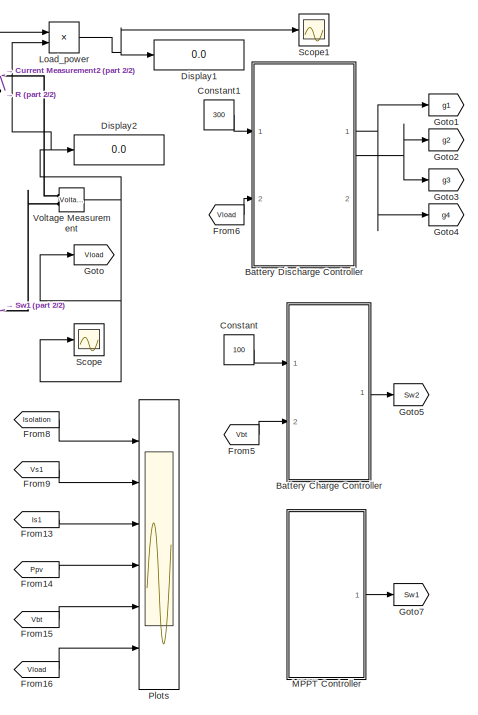
[diagram: root canvas - part 1/2, right side, full height]
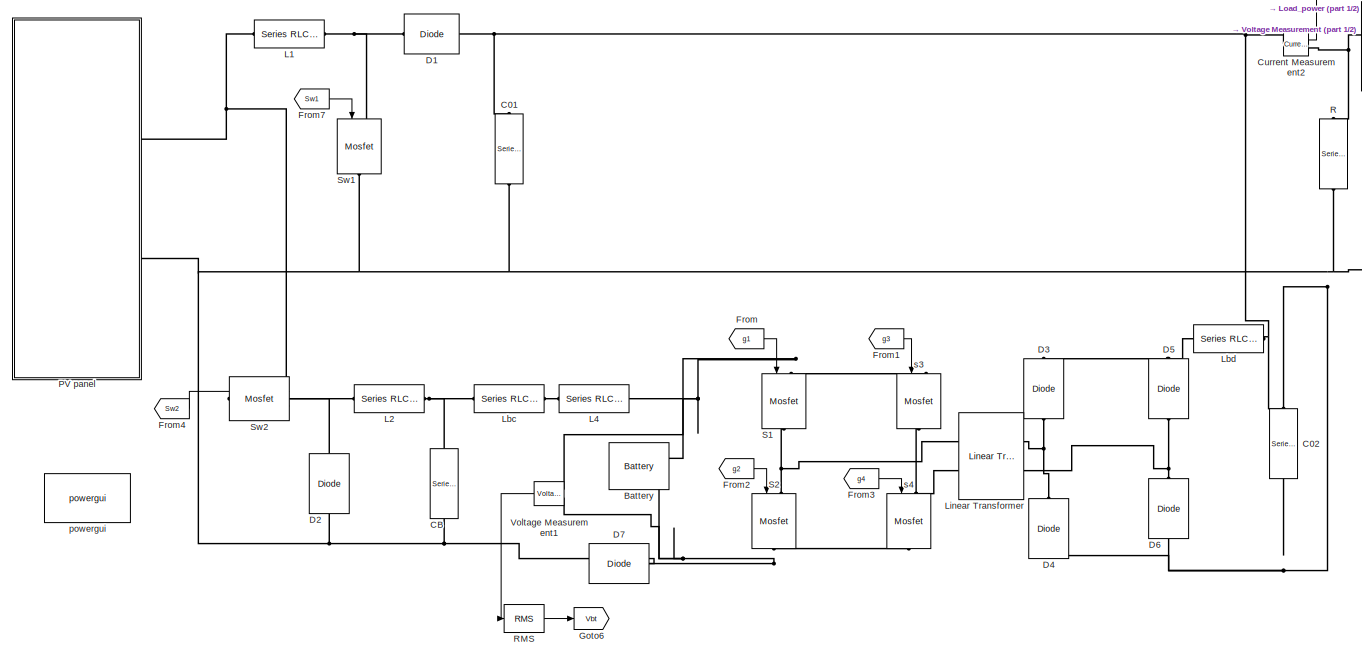
[diagram: root canvas - part 2/2, most of the canvas]
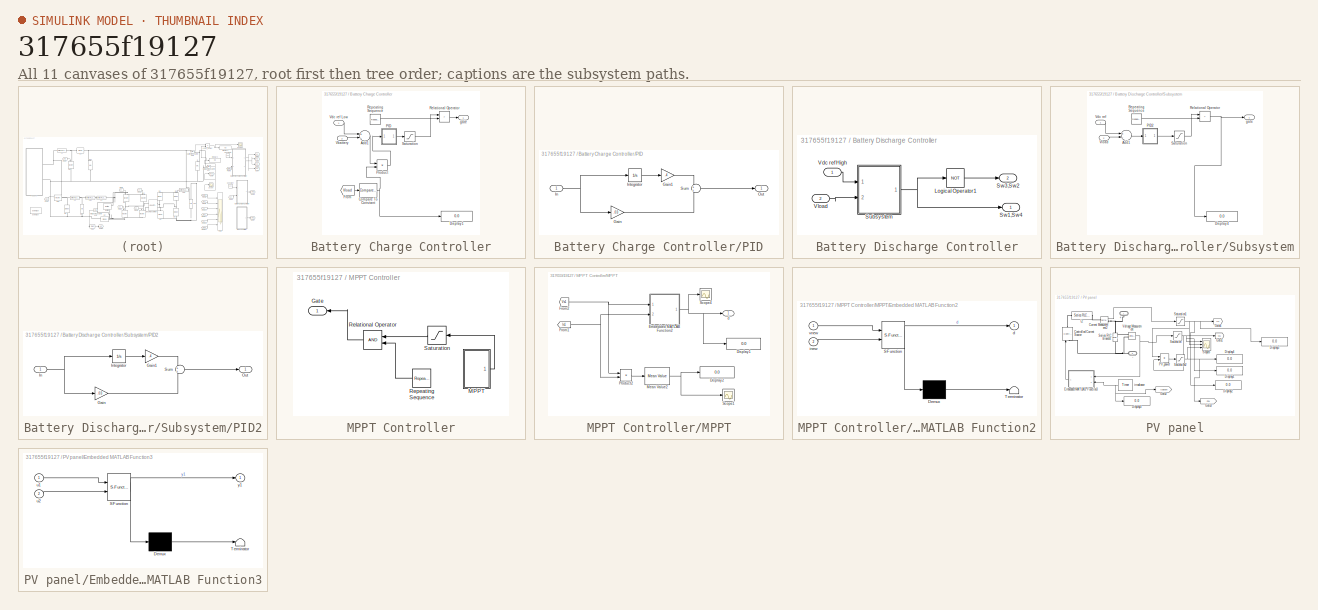
[diagram: thumbnail index - all 11 canvases of the model, root first then tree order]
MODEL slx_317655f19127
KIND model
CONFIG AbsTol = auto
CONFIG EnableMultiTasking = on
CONFIG FixedStep = auto
CONFIG MaxStep = auto
CONFIG MinStep = auto
CONFIG RelTol = 1e-3
CONFIG SampleTimeConstraint = Unconstrained
CONFIG Solver = ode45
CONFIG SolverName = ode45
CONFIG StartTime = 0.0
CONFIG StopTime = 1
BLOCK [Reference] Battery  REF=electricdrivelib/Extra Sources/Battery
  Ports = [0, 1, 0, 0, 0, 2]
  SourceBlock = electricdrivelib/Extra Sources/Battery
  SourceProductBaseCode = PS
  SourceProductName = Simscape Power Systems
  SourceType = Battery
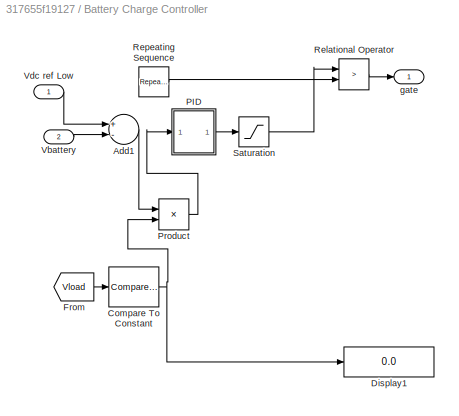
BLOCK [SubSystem] Battery Charge Controller
  Ports = [2, 1]
  RequestExecContextInheritance = off
  Variant = off
BLOCK [Sum] Battery Charge Controller/Add1
  InputSameDT = off
  Inputs = +-
  OutDataTypeStr = Inherit: Inherit via internal rule
  Ports = [2, 1]
  SaturateOnIntegerOverflow = off
BLOCK [Reference] Battery Charge Controller/Compare To Constant  REF=simulink/Logic and Bit
Operations/Compare
To Constant
  Ports = [1, 1]
  SourceBlock = simulink/Logic and Bit\nOperations/Compare\nTo Constant
  SourceProductBaseCode = SL
  SourceProductName = Simulink
  SourceType = Compare To Constant
BLOCK [Display] Battery Charge Controller/Display1
  Decimation = 2000
  Ports = [1]
BLOCK [From] Battery Charge Controller/From
  GotoTag = Vload
  TagVisibility = global
BLOCK [SubSystem] Battery Charge Controller/PID
  Ports = [1, 1]
  RequestExecContextInheritance = off
  Variant = off
BLOCK [Gain] Battery Charge Controller/PID/Gain
  Gain = .03
  OutDataTypeStr = Inherit: Inherit via internal rule
  ParamDataTypeStr = Inherit: Inherit via internal rule
  SaturateOnIntegerOverflow = off
BLOCK [Gain] Battery Charge Controller/PID/Gain1
  Gain = .4
  OutDataTypeStr = Inherit: Inherit via internal rule
  ParamDataTypeStr = Inherit: Inherit via internal rule
  SaturateOnIntegerOverflow = off
BLOCK [Inport] Battery Charge Controller/PID/In
  IconDisplay = Port number
BLOCK [Integrator] Battery Charge Controller/PID/Integrator
  Ports = [1, 1]
BLOCK [Outport] Battery Charge Controller/PID/Out
  IconDisplay = Port number
BLOCK [Sum] Battery Charge Controller/PID/Sum
  IconShape = round
  InputSameDT = off
  Inputs = +|+
  OutDataTypeStr = Inherit: Inherit via internal rule
  Ports = [2, 1]
  SaturateOnIntegerOverflow = off
BLOCK [Product] Battery Charge Controller/Product
  InputSameDT = off
  OutDataTypeStr = Inherit: Inherit via internal rule
  Ports = [2, 1]
  RndMeth = Floor
  SaturateOnIntegerOverflow = off
BLOCK [RelationalOperator] Battery Charge Controller/Relational Operator
  InputSameDT = off
  Operator = >
  OutDataTypeStr = boolean
  Ports = [2, 1]
BLOCK [Reference] Battery Charge Controller/Repeating Sequence  REF=simulink/Sources/Repeating
Sequence
  Ports = [0, 1]
  SourceBlock = simulink/Sources/Repeating\nSequence
  SourceProductBaseCode = SL
  SourceProductName = Simulink
  SourceType = Repeating table
BLOCK [Saturate] Battery Charge Controller/Saturation
  InputPortMap = u0
  LowerLimit = -1
  Ports = [1, 1]
  UpperLimit = 1
BLOCK [Inport] Battery Charge Controller/Vbattery
  IconDisplay = Port number
  Port = 2
BLOCK [Inport] Battery Charge Controller/Vdc ref Low
  IconDisplay = Port number
BLOCK [Outport] Battery Charge Controller/gate
  IconDisplay = Port number
BLOCK [SubSystem] Battery Discharge Controller
  Ports = [2, 2]
  RequestExecContextInheritance = off
  Variant = off
BLOCK [Logic] Battery Discharge Controller/Logical Operator1
  AllPortsSameDT = off
  Operator = NOT
  OutDataTypeStr = boolean
  Ports = [1, 1]
BLOCK [SubSystem] Battery Discharge Controller/Subsystem
  Ports = [2, 1]
  RequestExecContextInheritance = off
  Variant = off
BLOCK [Sum] Battery Discharge Controller/Subsystem/Add1
  InputSameDT = off
  Inputs = +-
  OutDataTypeStr = Inherit: Inherit via internal rule
  Ports = [2, 1]
  SaturateOnIntegerOverflow = off
BLOCK [Display] Battery Discharge Controller/Subsystem/Display4
  Decimation = 2000
  Ports = [1]
BLOCK [SubSystem] Battery Discharge Controller/Subsystem/PID2
  Ports = [1, 1]
  RequestExecContextInheritance = off
  Variant = off
BLOCK [Gain] Battery Discharge Controller/Subsystem/PID2/Gain
  Gain = .03
  OutDataTypeStr = Inherit: Inherit via internal rule
  ParamDataTypeStr = Inherit: Inherit via internal rule
  SaturateOnIntegerOverflow = off
BLOCK [Gain] Battery Discharge Controller/Subsystem/PID2/Gain1
  Gain = .4
  OutDataTypeStr = Inherit: Inherit via internal rule
  ParamDataTypeStr = Inherit: Inherit via internal rule
  SaturateOnIntegerOverflow = off
BLOCK [Inport] Battery Discharge Controller/Subsystem/PID2/In
  IconDisplay = Port number
BLOCK [Integrator] Battery Discharge Controller/Subsystem/PID2/Integrator
  Ports = [1, 1]
BLOCK [Outport] Battery Discharge Controller/Subsystem/PID2/Out
  IconDisplay = Port number
BLOCK [Sum] Battery Discharge Controller/Subsystem/PID2/Sum
  IconShape = round
  InputSameDT = off
  Inputs = +|+
  OutDataTypeStr = Inherit: Inherit via internal rule
  Ports = [2, 1]
  SaturateOnIntegerOverflow = off
BLOCK [RelationalOperator] Battery Discharge Controller/Subsystem/Relational Operator
  InputSameDT = off
  Operator = >
  OutDataTypeStr = boolean
  Ports = [2, 1]
BLOCK [Reference] Battery Discharge Controller/Subsystem/Repeating Sequence  REF=simulink/Sources/Repeating
Sequence
  Ports = [0, 1]
  SourceBlock = simulink/Sources/Repeating\nSequence
  SourceProductBaseCode = SL
  SourceProductName = Simulink
  SourceType = Repeating table
BLOCK [Saturate] Battery Discharge Controller/Subsystem/Saturation
  InputPortMap = u0
  LowerLimit = 0
  Ports = [1, 1]
  UpperLimit = .2
BLOCK [Inport] Battery Discharge Controller/Subsystem/Vdc ref
  IconDisplay = Port number
BLOCK [Inport] Battery Discharge Controller/Subsystem/Vload
  IconDisplay = Port number
  Port = 2
BLOCK [Outport] Battery Discharge Controller/Subsystem/gate
  IconDisplay = Port number
BLOCK [Outport] Battery Discharge Controller/Sw1,Sw4
  IconDisplay = Port number
BLOCK [Outport] Battery Discharge Controller/Sw3,Sw2
  IconDisplay = Port number
  Port = 2
BLOCK [Inport] Battery Discharge Controller/Vdc ref High
  IconDisplay = Port number
BLOCK [Inport] Battery Discharge Controller/Vload
  IconDisplay = Port number
  Port = 2
BLOCK [Reference] C01  REF=powerlib/Elements/Series RLC Branch
  Ports = [0, 0, 0, 0, 0, 1, 1]
  SourceBlock = powerlib/Elements/Series RLC Branch
  SourceProductBaseCode = PS
  SourceProductName = Simscape Power Systems
  SourceType = Series RLC Branch
BLOCK [Reference] C02  REF=powerlib/Elements/Series RLC Branch
  Ports = [0, 0, 0, 0, 0, 1, 1]
  SourceBlock = powerlib/Elements/Series RLC Branch
  SourceProductBaseCode = PS
  SourceProductName = Simscape Power Systems
  SourceType = Series RLC Branch
BLOCK [Reference] CB  REF=powerlib/Elements/Series RLC Branch
  Ports = [0, 0, 0, 0, 0, 1, 1]
  SourceBlock = powerlib/Elements/Series RLC Branch
  SourceProductBaseCode = PS
  SourceProductName = Simscape Power Systems
  SourceType = Series RLC Branch
BLOCK [Constant] Constant
  Value = 100
BLOCK [Constant] Constant1
  Value = 300
BLOCK [Reference] Current Measurement2  REF=powerlib/Measurements/Current Measurement
  Ports = [0, 1, 0, 0, 0, 1, 1]
  SourceBlock = powerlib/Measurements/Current Measurement
  SourceProductBaseCode = PS
  SourceProductName = Simscape Power Systems
  SourceType = Current Measurement
BLOCK [Reference] D1  REF=powerlib/Power
Electronics/Diode
  Ports = [0, 0, 0, 0, 0, 1, 1]
  SourceBlock = powerlib/Power\nElectronics/Diode
  SourceProductBaseCode = PS
  SourceProductName = Simscape Power Systems
  SourceType = Diode
BLOCK [Reference] D2  REF=powerlib/Power
Electronics/Diode
  Ports = [0, 0, 0, 0, 0, 1, 1]
  SourceBlock = powerlib/Power\nElectronics/Diode
  SourceProductBaseCode = PS
  SourceProductName = Simscape Power Systems
  SourceType = Diode
BLOCK [Reference] D3  REF=powerlib/Power
Electronics/Diode
  Ports = [0, 0, 0, 0, 0, 1, 1]
  SourceBlock = powerlib/Power\nElectronics/Diode
  SourceProductBaseCode = PS
  SourceProductName = Simscape Power Systems
  SourceType = Diode
BLOCK [Reference] D4  REF=powerlib/Power
Electronics/Diode
  Ports = [0, 0, 0, 0, 0, 1, 1]
  SourceBlock = powerlib/Power\nElectronics/Diode
  SourceProductBaseCode = PS
  SourceProductName = Simscape Power Systems
  SourceType = Diode
BLOCK [Reference] D5  REF=powerlib/Power
Electronics/Diode
  Ports = [0, 0, 0, 0, 0, 1, 1]
  SourceBlock = powerlib/Power\nElectronics/Diode
  SourceProductBaseCode = PS
  SourceProductName = Simscape Power Systems
  SourceType = Diode
BLOCK [Reference] D6  REF=powerlib/Power
Electronics/Diode
  Ports = [0, 0, 0, 0, 0, 1, 1]
  SourceBlock = powerlib/Power\nElectronics/Diode
  SourceProductBaseCode = PS
  SourceProductName = Simscape Power Systems
  SourceType = Diode
BLOCK [Reference] D7  REF=powerlib/Power
Electronics/Diode
  Ports = [0, 0, 0, 0, 0, 1, 1]
  SourceBlock = powerlib/Power\nElectronics/Diode
  SourceProductBaseCode = PS
  SourceProductName = Simscape Power Systems
  SourceType = Diode
BLOCK [Display] Display1
  Decimation = 2000
  Ports = [1]
BLOCK [Display] Display2
  Decimation = 2000
  Ports = [1]
BLOCK [From] From
  GotoTag = g1
BLOCK [From] From1
  GotoTag = g3
BLOCK [From] From13
  GotoTag = Is1
  TagVisibility = global
BLOCK [From] From14
  GotoTag = Ppv
  TagVisibility = global
BLOCK [From] From15
  GotoTag = Vbt
  TagVisibility = global
BLOCK [From] From16
  GotoTag = Vload
  TagVisibility = global
BLOCK [From] From2
  GotoTag = g2
  TagVisibility = global
BLOCK [From] From3
  GotoTag = g4
BLOCK [From] From4
  GotoTag = Sw2
BLOCK [From] From5
  GotoTag = Vbt
  TagVisibility = global
BLOCK [From] From6
  GotoTag = Vload
  TagVisibility = global
BLOCK [From] From7
  GotoTag = Sw1
  TagVisibility = global
BLOCK [From] From8
  GotoTag = Isolation
  TagVisibility = global
BLOCK [From] From9
  GotoTag = Vs1
  TagVisibility = global
BLOCK [Goto] Goto
  GotoTag = Vload
  TagVisibility = global
BLOCK [Goto] Goto1
  GotoTag = g1
BLOCK [Goto] Goto2
  GotoTag = g2
  TagVisibility = global
BLOCK [Goto] Goto3
  GotoTag = g3
BLOCK [Goto] Goto4
  GotoTag = g4
BLOCK [Goto] Goto5
  GotoTag = Sw2
BLOCK [Goto] Goto6
  GotoTag = Vbt
  TagVisibility = global
BLOCK [Goto] Goto7
  GotoTag = Sw1
  TagVisibility = global
BLOCK [Reference] L1  REF=powerlib/Elements/Series RLC Branch
  Ports = [0, 0, 0, 0, 0, 1, 1]
  SourceBlock = powerlib/Elements/Series RLC Branch
  SourceProductBaseCode = PS
  SourceProductName = Simscape Power Systems
  SourceType = Series RLC Branch
BLOCK [Reference] L2  REF=powerlib/Elements/Series RLC Branch
  Ports = [0, 0, 0, 0, 0, 1, 1]
  SourceBlock = powerlib/Elements/Series RLC Branch
  SourceProductBaseCode = PS
  SourceProductName = Simscape Power Systems
  SourceType = Series RLC Branch
BLOCK [Reference] L4  REF=powerlib/Elements/Series RLC Branch
  Ports = [0, 0, 0, 0, 0, 1, 1]
  SourceBlock = powerlib/Elements/Series RLC Branch
  SourceProductBaseCode = PS
  SourceProductName = Simscape Power Systems
  SourceType = Series RLC Branch
BLOCK [Reference] Lbc  REF=powerlib/Elements/Series RLC Branch
  Ports = [0, 0, 0, 0, 0, 1, 1]
  SourceBlock = powerlib/Elements/Series RLC Branch
  SourceProductBaseCode = PS
  SourceProductName = Simscape Power Systems
  SourceType = Series RLC Branch
BLOCK [Reference] Lbd  REF=powerlib/Elements/Series RLC Branch
  Ports = [0, 0, 0, 0, 0, 1, 1]
  SourceBlock = powerlib/Elements/Series RLC Branch
  SourceProductBaseCode = PS
  SourceProductName = Simscape Power Systems
  SourceType = Series RLC Branch
BLOCK [Reference] Linear Transformer  REF=powerlib/Elements/Linear Transformer
  Ports = [0, 0, 0, 0, 0, 2, 2]
  SourceBlock = powerlib/Elements/Linear Transformer
  SourceProductBaseCode = PS
  SourceProductName = Simscape Power Systems
  SourceType = Linear Transformer
BLOCK [Product] Load_power
  InputSameDT = off
  OutDataTypeStr = Inherit: Inherit via internal rule
  Ports = [2, 1]
  SaturateOnIntegerOverflow = off
BLOCK [SubSystem] MPPT Controller
  Ports = [0, 1]
  RequestExecContextInheritance = off
  Variant = off
BLOCK [Outport] MPPT Controller/Gate
  IconDisplay = Port number
BLOCK [SubSystem] MPPT Controller/MPPT
  Ports = [0, 1]
  RequestExecContextInheritance = off
  Variant = off
BLOCK [Display] MPPT Controller/MPPT/Display1
  Decimation = 2000
  Ports = [1]
BLOCK [Display] MPPT Controller/MPPT/Display2
  Decimation = 2000
  Ports = [1]
BLOCK [SubSystem] MPPT Controller/MPPT/Embedded MATLAB Function2
  ErrorFcn = Stateflow.Translate.translate
  PermitHierarchicalResolution = ExplicitOnly
  Ports = [2, 1]
  RequestExecContextInheritance = off
  SFBlockType = MATLAB Function
  TreatAsAtomicUnit = on
  Variant = off
BLOCK [Demux] MPPT Controller/MPPT/Embedded MATLAB Function2/ Demux 
  Outputs = 1
  Ports = [1, 1]
BLOCK [S-Function] MPPT Controller/MPPT/Embedded MATLAB Function2/ SFunction 
  EnableBusSupport = on
  FunctionName = sf_sfun
  PortCounts = [2 2]
  Ports = [2, 2]
  SFcnIsStateOwnerBlock = off
  SFunctionDeploymentMode = off
  Tag = Stateflow S-Function Anna_final 2
BLOCK [Terminator] MPPT Controller/MPPT/Embedded MATLAB Function2/ Terminator 
BLOCK [Outport] MPPT Controller/MPPT/Embedded MATLAB Function2/d
  IconDisplay = Port number
BLOCK [Inport] MPPT Controller/MPPT/Embedded MATLAB Function2/inew
  IconDisplay = Port number
  Port = 2
BLOCK [Inport] MPPT Controller/MPPT/Embedded MATLAB Function2/vnew
  IconDisplay = Port number
BLOCK [From] MPPT Controller/MPPT/From1
  GotoTag = Is1
  TagVisibility = global
BLOCK [From] MPPT Controller/MPPT/From2
  GotoTag = Vs1
  TagVisibility = global
BLOCK [Reference] MPPT Controller/MPPT/Mean Value2  REF=powerlib_extras/Measurements/Mean Value
  Ports = [1, 1]
  SourceBlock = powerlib_extras/Measurements/Mean Value
  SourceType = Mean value
BLOCK [Product] MPPT Controller/MPPT/Product2
  InputSameDT = off
  OutDataTypeStr = Inherit: Inherit via internal rule
  Ports = [2, 1]
  SaturateOnIntegerOverflow = off
BLOCK [Scope] MPPT Controller/MPPT/Scope1
  NumInputPorts = 1
  Ports = [1]
  ScopeSpecificationString = Simulink.scopes.TimeScopeBlockCfg('CurrentConfiguration', extmgr.ConfigurationSet(extmgr.Configuration('Core','General UI',true),extmgr.Configuration('Core','Source UI',true),extmgr.Configuration('Sources','WiredSimulink',true,'DataLoggingVariableName','ScopeData1','DataLoggingSaveFormat','StructureWithTime','DataLoggingDecimation','100','DataLoggingDecimateData',true),extmgr.Configuration('Visual...<+1790ch>
BLOCK [Scope] MPPT Controller/MPPT/Scope4
  NumInputPorts = 1
  Ports = [1]
  ScopeSpecificationString = C++SS(StrPVP('Location','[654, 143, 1361, 590]'),StrPVP('Open','off'),StrPVP('ZoomMode','yonly'),MxPVP('AxesTitles',53,'struct(''axes1'',''%<SignalLabel>'')'),MxPVP('ScopeGraphics',56,'struct(''FigureColor'',''[0.5 0.5 0.5]'',''AxesColor'',''[0 0 0]'',''AxesTickColor'',''[1 1 1]'',''LineColors'',''[1 1 0;1 0 1;0 1 1;1 0 0;0 1 0;0 0 1]'',''LineStyles'',''-|-|-|-|-|-'',''LineWidths'',''[0.5 0.5 0.5 ...<+377ch>
BLOCK [Outport] MPPT Controller/MPPT/d
  IconDisplay = Port number
BLOCK [RelationalOperator] MPPT Controller/Relational Operator
  InputSameDT = off
  OutDataTypeStr = boolean
  Ports = [2, 1]
BLOCK [Reference] MPPT Controller/Repeating Sequence  REF=simulink/Sources/Repeating
Sequence
  Ports = [0, 1]
  SourceBlock = simulink/Sources/Repeating\nSequence
  SourceProductBaseCode = SL
  SourceProductName = Simulink
  SourceType = Repeating table
BLOCK [Saturate] MPPT Controller/Saturation
  InputPortMap = u0
  LowerLimit = 0.67
  Ports = [1, 1]
  UpperLimit = 0.75
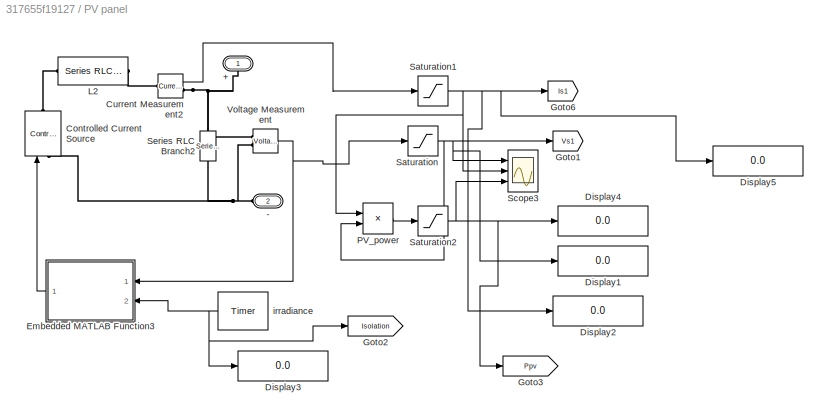
BLOCK [SubSystem] PV panel
  Ports = [0, 0, 0, 0, 0, 2]
  RequestExecContextInheritance = off
  Variant = off
BLOCK [PMIOPort] PV panel/+
  Port = 1
  Side = Left
BLOCK [PMIOPort] PV panel/-
  Port = 2
  Side = Left
BLOCK [Reference] PV panel/Controlled Current Source  REF=powerlib/Electrical
Sources/Controlled Current Source
  Ports = [1, 0, 0, 0, 0, 1, 1]
  SourceBlock = powerlib/Electrical\nSources/Controlled Current Source
  SourceProductBaseCode = PS
  SourceProductName = Simscape Power Systems
  SourceType = Controlled Current Source
BLOCK [Reference] PV panel/Current Measurement2  REF=powerlib/Measurements/Current Measurement
  Ports = [0, 1, 0, 0, 0, 1, 1]
  SourceBlock = powerlib/Measurements/Current Measurement
  SourceProductBaseCode = PS
  SourceProductName = Simscape Power Systems
  SourceType = Current Measurement
BLOCK [Display] PV panel/Display1
  Decimation = 2000
  Ports = [1]
BLOCK [Display] PV panel/Display2
  Decimation = 2000
  Ports = [1]
BLOCK [Display] PV panel/Display3
  Decimation = 2000
  Ports = [1]
BLOCK [Display] PV panel/Display4
  Decimation = 2000
  Ports = [1]
BLOCK [Display] PV panel/Display5
  Decimation = 2000
  Ports = [1]
BLOCK [SubSystem] PV panel/Embedded MATLAB Function3
  ErrorFcn = Stateflow.Translate.translate
  PermitHierarchicalResolution = ExplicitOnly
  Ports = [2, 1]
  RequestExecContextInheritance = off
  SFBlockType = MATLAB Function
  TreatAsAtomicUnit = on
  Variant = off
BLOCK [Demux] PV panel/Embedded MATLAB Function3/ Demux 
  Outputs = 1
  Ports = [1, 1]
BLOCK [S-Function] PV panel/Embedded MATLAB Function3/ SFunction 
  EnableBusSupport = on
  FunctionName = sf_sfun
  PortCounts = [2 2]
  Ports = [2, 2]
  SFcnIsStateOwnerBlock = off
  SFunctionDeploymentMode = off
  Tag = Stateflow S-Function Anna_final 3
BLOCK [Terminator] PV panel/Embedded MATLAB Function3/ Terminator 
BLOCK [Inport] PV panel/Embedded MATLAB Function3/u1
  IconDisplay = Port number
BLOCK [Inport] PV panel/Embedded MATLAB Function3/u2
  IconDisplay = Port number
  Port = 2
BLOCK [Outport] PV panel/Embedded MATLAB Function3/y1
  IconDisplay = Port number
BLOCK [Goto] PV panel/Goto1
  GotoTag = Vs1
  TagVisibility = global
BLOCK [Goto] PV panel/Goto2
  GotoTag = Isolation
  TagVisibility = global
BLOCK [Goto] PV panel/Goto3
  GotoTag = Ppv
  TagVisibility = global
BLOCK [Goto] PV panel/Goto6
  GotoTag = Is1
  TagVisibility = global
BLOCK [Reference] PV panel/L2  REF=powerlib/Elements/Series RLC Branch
  Ports = [0, 0, 0, 0, 0, 1, 1]
  SourceBlock = powerlib/Elements/Series RLC Branch
  SourceProductBaseCode = PS
  SourceProductName = Simscape Power Systems
  SourceType = Series RLC Branch
BLOCK [Product] PV panel/PV_power
  InputSameDT = off
  OutDataTypeStr = Inherit: Inherit via internal rule
  Ports = [2, 1]
  SaturateOnIntegerOverflow = off
BLOCK [Saturate] PV panel/Saturation
  InputPortMap = u0
  LowerLimit = 0
  Ports = [1, 1]
  UpperLimit = 100
BLOCK [Saturate] PV panel/Saturation1
  InputPortMap = u0
  LowerLimit = 0
  Ports = [1, 1]
  UpperLimit = 10
BLOCK [Saturate] PV panel/Saturation2
  InputPortMap = u0
  LowerLimit = 0
  Ports = [1, 1]
  UpperLimit = 300
BLOCK [Scope] PV panel/Scope3
  NumInputPorts = 3
  Ports = [3]
  ScopeSpecificationString = Simulink.scopes.TimeScopeBlockCfg('CurrentConfiguration', extmgr.ConfigurationSet(extmgr.Configuration('Core','General UI',true),extmgr.Configuration('Core','Source UI',true),extmgr.Configuration('Sources','WiredSimulink',true,'DataLogging',true,'DataLoggingVariableName','ScopeData3','DataLoggingSaveFormat','StructureWithTime','DataLoggingDecimation','10','DataLoggingDecimateData',true),extmgr.Con...<+2342ch>
BLOCK [Reference] PV panel/Series RLC Branch2  REF=powerlib/Elements/Series RLC Branch
  Ports = [0, 0, 0, 0, 0, 1, 1]
  SourceBlock = powerlib/Elements/Series RLC Branch
  SourceProductBaseCode = PS
  SourceProductName = Simscape Power Systems
  SourceType = Series RLC Branch
BLOCK [Reference] PV panel/Voltage Measurement  REF=powerlib/Measurements/Voltage Measurement
  Ports = [0, 1, 0, 0, 0, 2]
  SourceBlock = powerlib/Measurements/Voltage Measurement
  SourceProductBaseCode = PS
  SourceProductName = Simscape Power Systems
  SourceType = Voltage Measurement
BLOCK [Reference] PV panel/irradiance  REF=powerlib_extras/Control 
Blocks/Timer
  Ports = [0, 1]
  SourceBlock = powerlib_extras/Control \nBlocks/Timer
  SourceType = Timer
BLOCK [Scope] Plots
  NumInputPorts = 6
  Ports = [6]
  ScopeSpecificationString = Simulink.scopes.TimeScopeBlockCfg('CurrentConfiguration', extmgr.ConfigurationSet(extmgr.Configuration('Core','General UI',true,'FigureColor',[1 1 1]),extmgr.Configuration('Core','Source UI',true),extmgr.Configuration('Sources','WiredSimulink',true,'DataLoggingVariableName','ScopeData2'),extmgr.Configuration('Visuals','Time Domain',true,'TimeAxisLabels','All','SerializedDisplays',{struct('MinYLimR...<+5797ch>
BLOCK [Reference] R  REF=powerlib/Elements/Series RLC Branch
  Ports = [0, 0, 0, 0, 0, 1, 1]
  SourceBlock = powerlib/Elements/Series RLC Branch
  SourceProductBaseCode = PS
  SourceProductName = Simscape Power Systems
  SourceType = Series RLC Branch
BLOCK [Reference] RMS  REF=powerlib_extras/Measurements/RMS
  Ports = [1, 1]
  SourceBlock = powerlib_extras/Measurements/RMS
  SourceType = RMS
BLOCK [Reference] S1  REF=powerlib/Power
Electronics/Mosfet
  Ports = [1, 0, 0, 0, 0, 1, 1]
  SourceBlock = powerlib/Power\nElectronics/Mosfet
  SourceProductBaseCode = PS
  SourceProductName = Simscape Power Systems
  SourceType = Mosfet
BLOCK [Reference] S2  REF=powerlib/Power
Electronics/Mosfet
  Ports = [1, 0, 0, 0, 0, 1, 1]
  SourceBlock = powerlib/Power\nElectronics/Mosfet
  SourceProductBaseCode = PS
  SourceProductName = Simscape Power Systems
  SourceType = Mosfet
BLOCK [Scope] Scope
  NumInputPorts = 1
  Ports = [1]
  ScopeSpecificationString = Simulink.scopes.TimeScopeBlockCfg('CurrentConfiguration', extmgr.ConfigurationSet(extmgr.Configuration('Core','General UI',true),extmgr.Configuration('Core','Source UI',true),extmgr.Configuration('Sources','WiredSimulink',true,'DataLoggingSaveFormat','Array','DataLoggingDecimation','1','DataLoggingDecimateData',true),extmgr.Configuration('Visuals','Time Domain',true,'SerializedDisplays',{struct('M...<+1711ch>
BLOCK [Scope] Scope1
  NumInputPorts = 1
  Ports = [1]
  ScopeSpecificationString = Simulink.scopes.TimeScopeBlockCfg('CurrentConfiguration', extmgr.ConfigurationSet(extmgr.Configuration('Core','General UI',true),extmgr.Configuration('Core','Source UI',true),extmgr.Configuration('Sources','WiredSimulink',true,'DataLoggingSaveFormat','Array','DataLoggingDecimation','1','DataLoggingDecimateData',true,'DataLoggingVariableName','ScopeData1'),extmgr.Configuration('Visuals','Time Domai...<+1732ch>
BLOCK [Reference] Sw1  REF=powerlib/Power
Electronics/Mosfet
  Ports = [1, 0, 0, 0, 0, 1, 1]
  SourceBlock = powerlib/Power\nElectronics/Mosfet
  SourceProductBaseCode = PS
  SourceProductName = Simscape Power Systems
  SourceType = Mosfet
BLOCK [Reference] Sw2  REF=powerlib/Power
Electronics/Mosfet
  Ports = [1, 0, 0, 0, 0, 1, 1]
  SourceBlock = powerlib/Power\nElectronics/Mosfet
  SourceProductBaseCode = PS
  SourceProductName = Simscape Power Systems
  SourceType = Mosfet
BLOCK [Reference] Voltage Measurement  REF=powerlib/Measurements/Voltage Measurement
  Ports = [0, 1, 0, 0, 0, 2]
  SourceBlock = powerlib/Measurements/Voltage Measurement
  SourceProductBaseCode = PS
  SourceProductName = Simscape Power Systems
  SourceType = Voltage Measurement
BLOCK [Reference] Voltage Measurement1  REF=powerlib/Measurements/Voltage Measurement
  Ports = [0, 1, 0, 0, 0, 2]
  SourceBlock = powerlib/Measurements/Voltage Measurement
  SourceProductBaseCode = PS
  SourceProductName = Simscape Power Systems
  SourceType = Voltage Measurement
BLOCK [Reference] powergui  REF=powerlib/powergui
  Ports = []
  Priority = 1
  SourceBlock = powerlib/powergui
  SourceProductBaseCode = PS
  SourceProductName = Simscape Power Systems
  SourceType = PSB option menu block
BLOCK [Reference] s3  REF=powerlib/Power
Electronics/Mosfet
  Ports = [1, 0, 0, 0, 0, 1, 1]
  SourceBlock = powerlib/Power\nElectronics/Mosfet
  SourceProductBaseCode = PS
  SourceProductName = Simscape Power Systems
  SourceType = Mosfet
BLOCK [Reference] s4  REF=powerlib/Power
Electronics/Mosfet
  Ports = [1, 0, 0, 0, 0, 1, 1]
  SourceBlock = powerlib/Power\nElectronics/Mosfet
  SourceProductBaseCode = PS
  SourceProductName = Simscape Power Systems
  SourceType = Mosfet
LINE Battery Charge Controller/Add1:1 -> Battery Charge Controller/Product:1
NET Battery Charge Controller/Compare To Constant:1 -> Battery Charge Controller/Display1:1, Battery Charge Controller/Product:2
LINE Battery Charge Controller/From:1 -> Battery Charge Controller/Compare To Constant:1
LINE Battery Charge Controller/PID/Gain1:1 -> Battery Charge Controller/PID/Sum:1
LINE Battery Charge Controller/PID/Gain:1 -> Battery Charge Controller/PID/Sum:2
NET Battery Charge Controller/PID/In:1 -> Battery Charge Controller/PID/Gain:1, Battery Charge Controller/PID/Integrator:1
LINE Battery Charge Controller/PID/Integrator:1 -> Battery Charge Controller/PID/Gain1:1
LINE Battery Charge Controller/PID/Sum:1 -> Battery Charge Controller/PID/Out:1
LINE Battery Charge Controller/PID:1 -> Battery Charge Controller/Saturation:1
LINE Battery Charge Controller/Product:1 -> Battery Charge Controller/PID:1
LINE Battery Charge Controller/Relational Operator:1 -> Battery Charge Controller/gate:1
LINE Battery Charge Controller/Repeating Sequence:1 -> Battery Charge Controller/Relational Operator:2
LINE Battery Charge Controller/Saturation:1 -> Battery Charge Controller/Relational Operator:1
LINE Battery Charge Controller/Vbattery:1 -> Battery Charge Controller/Add1:2
LINE Battery Charge Controller/Vdc ref Low:1 -> Battery Charge Controller/Add1:1
LINE Battery Charge Controller:1 -> Goto5:1
LINE Battery Discharge Controller/Logical Operator1:1 -> Battery Discharge Controller/Sw3,Sw2:1
LINE Battery Discharge Controller/Subsystem/Add1:1 -> Battery Discharge Controller/Subsystem/PID2:1
LINE Battery Discharge Controller/Subsystem/PID2/Gain1:1 -> Battery Discharge Controller/Subsystem/PID2/Sum:1
LINE Battery Discharge Controller/Subsystem/PID2/Gain:1 -> Battery Discharge Controller/Subsystem/PID2/Sum:2
NET Battery Discharge Controller/Subsystem/PID2/In:1 -> Battery Discharge Controller/Subsystem/PID2/Gain:1, Battery Discharge Controller/Subsystem/PID2/Integrator:1
LINE Battery Discharge Controller/Subsystem/PID2/Integrator:1 -> Battery Discharge Controller/Subsystem/PID2/Gain1:1
LINE Battery Discharge Controller/Subsystem/PID2/Sum:1 -> Battery Discharge Controller/Subsystem/PID2/Out:1
LINE Battery Discharge Controller/Subsystem/PID2:1 -> Battery Discharge Controller/Subsystem/Saturation:1
NET Battery Discharge Controller/Subsystem/Relational Operator:1 -> Battery Discharge Controller/Subsystem/Display4:1, Battery Discharge Controller/Subsystem/gate:1
LINE Battery Discharge Controller/Subsystem/Repeating Sequence:1 -> Battery Discharge Controller/Subsystem/Relational Operator:2
LINE Battery Discharge Controller/Subsystem/Saturation:1 -> Battery Discharge Controller/Subsystem/Relational Operator:1
LINE Battery Discharge Controller/Subsystem/Vdc ref:1 -> Battery Discharge Controller/Subsystem/Add1:1
LINE Battery Discharge Controller/Subsystem/Vload:1 -> Battery Discharge Controller/Subsystem/Add1:2
NET Battery Discharge Controller/Subsystem:1 -> Battery Discharge Controller/Logical Operator1:1, Battery Discharge Controller/Sw1,Sw4:1
LINE Battery Discharge Controller/Vdc ref High:1 -> Battery Discharge Controller/Subsystem:1
LINE Battery Discharge Controller/Vload:1 -> Battery Discharge Controller/Subsystem:2
NET Battery Discharge Controller:1 -> Goto1:1, Goto4:1
NET Battery Discharge Controller:2 -> Goto2:1, Goto3:1
LINE Constant1:1 -> Battery Discharge Controller:1
LINE Constant:1 -> Battery Charge Controller:1
LINE Current Measurement2:1 -> Load_power:1
LINE From13:1 -> Plots:3
LINE From14:1 -> Plots:4
LINE From15:1 -> Plots:5
LINE From16:1 -> Plots:6
LINE From1:1 -> s3:1
LINE From2:1 -> S2:1
LINE From3:1 -> s4:1
LINE From4:1 -> Sw2:1
LINE From5:1 -> Battery Charge Controller:2
LINE From6:1 -> Battery Discharge Controller:2
LINE From7:1 -> Sw1:1
LINE From8:1 -> Plots:1
LINE From9:1 -> Plots:2
LINE From:1 -> S1:1
NET Load_power:1 -> Display1:1, Scope1:1
NET MPPT Controller/MPPT/Embedded MATLAB Function2:1 -> MPPT Controller/MPPT/Display1:1, MPPT Controller/MPPT/Scope4:1, MPPT Controller/MPPT/d:1
NET MPPT Controller/MPPT/From1:1 -> MPPT Controller/MPPT/Embedded MATLAB Function2:2, MPPT Controller/MPPT/Product2:2
NET MPPT Controller/MPPT/From2:1 -> MPPT Controller/MPPT/Embedded MATLAB Function2:1, MPPT Controller/MPPT/Product2:1
NET MPPT Controller/MPPT/Mean Value2:1 -> MPPT Controller/MPPT/Display2:1, MPPT Controller/MPPT/Scope1:1
LINE MPPT Controller/MPPT/Product2:1 -> MPPT Controller/MPPT/Mean Value2:1
LINE MPPT Controller/MPPT:1 -> MPPT Controller/Saturation:1
LINE MPPT Controller/Relational Operator:1 -> MPPT Controller/Gate:1
LINE MPPT Controller/Repeating Sequence:1 -> MPPT Controller/Relational Operator:2
LINE MPPT Controller/Saturation:1 -> MPPT Controller/Relational Operator:1
LINE MPPT Controller:1 -> Goto7:1
LINE PV panel/Current Measurement2:1 -> PV panel/Saturation1:1
LINE PV panel/Embedded MATLAB Function3:1 -> PV panel/Controlled Current Source:1
LINE PV panel/PV_power:1 -> PV panel/Saturation2:1
NET PV panel/Saturation1:1 -> PV panel/Display2:1, PV panel/Display5:1, PV panel/Goto6:1, PV panel/PV_power:1, PV panel/Scope3:2
NET PV panel/Saturation2:1 -> PV panel/Display4:1, PV panel/Goto3:1, PV panel/Scope3:3
NET PV panel/Saturation:1 -> PV panel/Display1:1, PV panel/Goto1:1, PV panel/PV_power:2, PV panel/Scope3:1
NET PV panel/Voltage Measurement:1 -> PV panel/Embedded MATLAB Function3:1, PV panel/Saturation:1
NET PV panel/irradiance:1 -> PV panel/Display3:1, PV panel/Embedded MATLAB Function3:2, PV panel/Goto2:1
LINE RMS:1 -> Goto6:1
LINE Voltage Measurement1:1 -> RMS:1
NET Voltage Measurement:1 -> Display2:1, Goto:1, Load_power:2, Scope:1
PNET net1: Battery:LConn1 -- L4:RConn1 -- S1:LConn1 -- Voltage Measurement1:LConn1 -- s3:LConn1
PNET net2: Battery:LConn2 -- D7:LConn1 -- S2:RConn1 -- Voltage Measurement1:LConn2 -- s4:RConn1
PNET net3: C01:LConn1 -- C02:LConn1 -- Current Measurement2:LConn1 -- D1:RConn1 -- Lbd:RConn1
PNET net4: C01:RConn1 -- C02:RConn1 -- CB:RConn1 -- D2:LConn1 -- D4:LConn1 -- D6:LConn1 -- D7:RConn1 -- PV panel:LConn2 -- R:RConn1 -- Sw1:RConn1 -- Voltage Measurement:LConn2
PNET net5: CB:LConn1 -- L2:RConn1 -- Lbc:LConn1
PNET net6: Current Measurement2:RConn1 -- R:LConn1 -- Voltage Measurement:LConn1
PNET net7: D1:LConn1 -- L1:RConn1 -- Sw1:LConn1
PNET net8: D2:RConn1 -- L2:LConn1 -- Sw2:RConn1
PNET net9: D3:LConn1 -- D4:RConn1 -- Linear Transformer:RConn1
PNET net10: D3:RConn1 -- D5:RConn1 -- Lbd:LConn1
PNET net11: D5:LConn1 -- D6:RConn1 -- Linear Transformer:RConn2
PNET net12: L1:LConn1 -- PV panel:LConn1 -- Sw2:LConn1
PLINE L4:LConn1 -- Lbc:RConn1
PNET net13: Linear Transformer:LConn1 -- S1:RConn1 -- S2:LConn1
PNET net14: Linear Transformer:LConn2 -- s3:RConn1 -- s4:LConn1
PNET net15: PV panel/+:RConn1 -- PV panel/Current Measurement2:RConn1 -- PV panel/Series RLC Branch2:LConn1 -- PV panel/Voltage Measurement:LConn1
PNET net16: PV panel/-:RConn1 -- PV panel/Controlled Current Source:LConn1 -- PV panel/Series RLC Branch2:RConn1 -- PV panel/Voltage Measurement:LConn2
PLINE PV panel/Controlled Current Source:RConn1 -- PV panel/L2:LConn1
PLINE PV panel/Current Measurement2:LConn1 -- PV panel/L2:RConn1
note: NET lines group one-source signal fan-out (src -> all destinations, sorted); 1:1 wires keep LINE; PNET lines group multi-terminal physical nets as a canonical sorted terminal list (undirected conserving connections); 2-terminal nets keep the pairwise PLINE form
CHART MPPT Controller/MPPT/Embedded
MATLAB Function2 states=1 transitions=1
  STATE_LABEL 'eML_blk_kernel()'
  STATE_LABEL 'SCRIPT:\nfunction d = fcn(vnew,inew)\n\ndmax=0.9;\ndmin=0.4;\ndini=0.6;\ndeld=1e-4;\npnew=vnew*inew;\npersistent pold dold vold c;\n\nif isempty(pold)\n    pold=0;\n    vold=0;\n    dold=dini;\n    c=-50;\nend\ndelp=pnew-pold;\ndelv=vnew-vold;\nc=c+1;\n\nif (c==50)\n    if (delp>0)\n       if (delv<0)\n       d=dold+deld;\n       else\n       d=dold-deld;\n       end\n    else\n       if (delv<0);\n           d=dold-deld;\n   ...<+152ch>'
CHART PV panel/Embedded
MATLAB Function3 states=1 transitions=1
  STATE_LABEL 'eML_blk_kernel()'
  STATE_LABEL 'SCRIPT:\nfunction y1 = fcn(u1,u2)\nRs = 0.01;%cell series resistance\nRp = 10000;% cell shunt resistance\nIpho = 2;\nIro  = 1000;\nIr   = u2;% irradiance\nT    = 27;% Temperature\nNp   = 17;% # of parallel connected cells\nNs   = 220;% # of series connected cells\nIph  = Ipho * Ir/Iro;\nk    = 1.38e-23;% Boltzmann’s constant \nq    = 1.6e-19;% Electron charge\nVt   = k*(T+273)/q;\nN1   = 1.5;% Diode ideality fa...<+402ch>'
